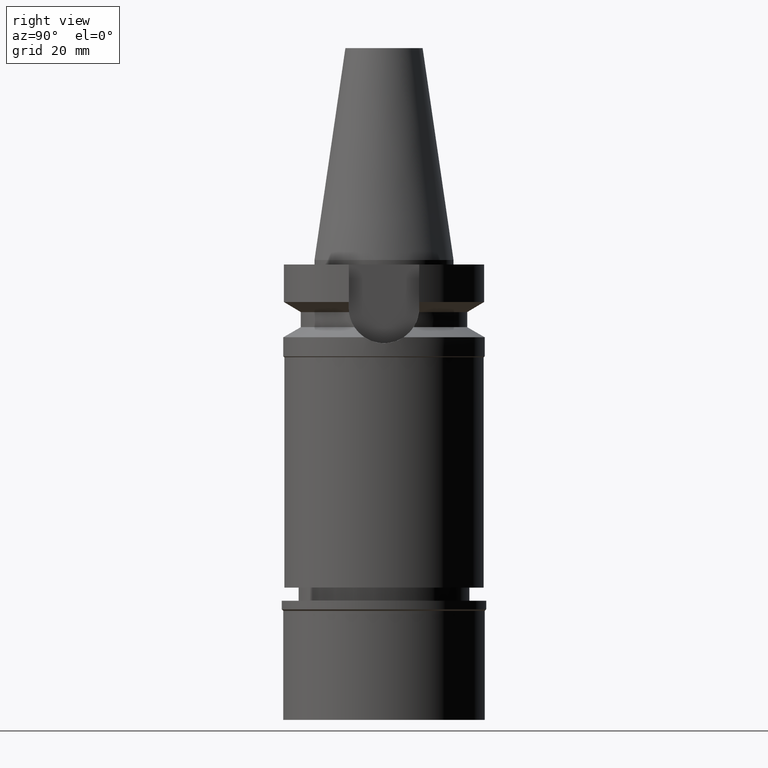
[diagram: clean part render]
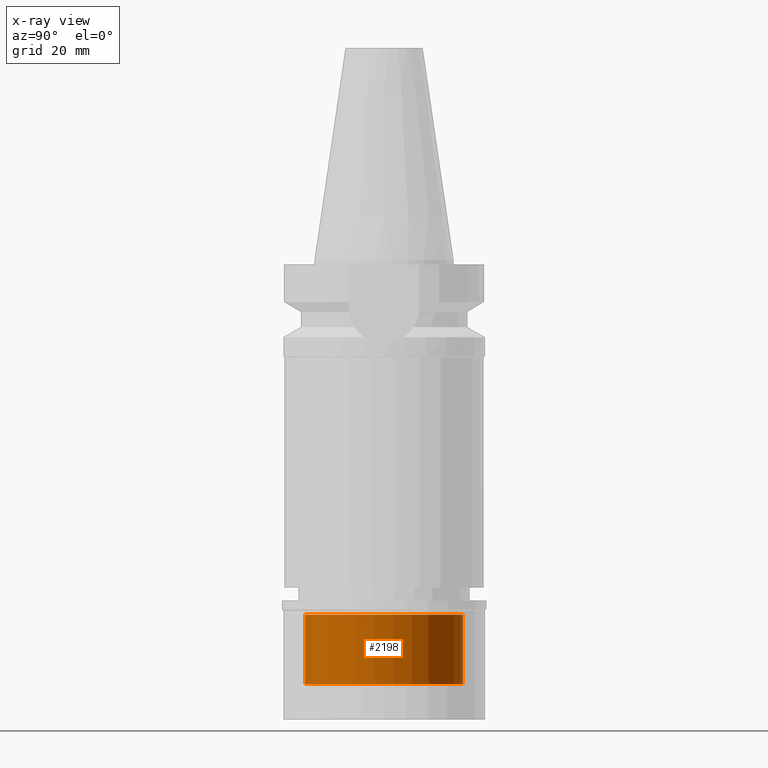
[diagram: x-ray — body ghosted, one internal face saturated and labeled with its STEP entity id]
A machine part, right view, then the same camera in x-ray: the body is ghosted and one INTERNAL B-rep face — a face not visible from any outside direction — is saturated and labeled: STEP entity #2198.
In plain terms, the highlighted cylindrical surface (partial cylindrical patch) has radius 18 mm, axis along (0, 0, -1).
Its self-contained STEP definition (entity closure, byte-faithful):
#32 = CARTESIAN_POINT ( 'NONE',  ( 0.0000000000000000000, -18.00000000000000000, -19.00000000000000000 ) ) ;
#158 = DIRECTION ( 'NONE',  ( 0.0000000000000000000, 0.0000000000000000000, 1.000000000000000000 ) ) ;
#170 = ORIENTED_EDGE ( 'NONE', *, *, #2841, .T. ) ;
#187 = ORIENTED_EDGE ( 'NONE', *, *, #1482, .T. ) ;
#195 = ORIENTED_EDGE ( 'NONE', *, *, #1257, .F. ) ;
#241 = DIRECTION ( 'NONE',  ( 0.0000000000000000000, 0.0000000000000000000, 1.000000000000000000 ) ) ;
#404 = CARTESIAN_POINT ( 'NONE',  ( 0.0000000000000000000, 18.00000000000000000, -19.00000000000000000 ) ) ;
#493 = CARTESIAN_POINT ( 'NONE',  ( 0.0000000000000000000, 0.0000000000000000000, 0.0000000000000000000 ) ) ;
#499 = CARTESIAN_POINT ( 'NONE',  ( 0.0000000000000000000, 0.0000000000000000000, -19.00000000000000000 ) ) ;
#500 = EDGE_CURVE ( 'NONE', #1599, #1849, #2613, .T. ) ;
#506 = VERTEX_POINT ( 'NONE', #404 ) ;
#532 = ORIENTED_EDGE ( 'NONE', *, *, #500, .T. ) ;
#653 = CARTESIAN_POINT ( 'NONE',  ( 0.0000000000000000000, 18.00000000000000000, -19.00000000000000000 ) ) ;
#870 = CARTESIAN_POINT ( 'NONE',  ( 0.0000000000000000000, 0.0000000000000000000, -3.200000000000000178 ) ) ;
#917 = DIRECTION ( 'NONE',  ( 0.0000000000000000000, -1.000000000000000000, 0.0000000000000000000 ) ) ;
#1123 = DIRECTION ( 'NONE',  ( 0.0000000000000000000, 0.0000000000000000000, 1.000000000000000000 ) ) ;
#1172 = CYLINDRICAL_SURFACE ( 'NONE', #2403, 18.00000000000000000 ) ;
#1219 = VECTOR ( 'NONE', #241, 1000.000000000000000 ) ;
#1257 = EDGE_CURVE ( 'NONE', #506, #1849, #2085, .T. ) ;
#1373 = AXIS2_PLACEMENT_3D ( 'NONE', #499, #1667, #1626 ) ;
#1482 = EDGE_CURVE ( 'NONE', #506, #2166, #1604, .T. ) ;
#1599 = VERTEX_POINT ( 'NONE', #1871 ) ;
#1604 = CIRCLE ( 'NONE', #1373, 18.00000000000000000 ) ;
#1626 = DIRECTION ( 'NONE',  ( 0.0000000000000000000, 1.000000000000000000, 0.0000000000000000000 ) ) ;
#1628 = DIRECTION ( 'NONE',  ( 0.0000000000000000000, 0.0000000000000000000, -1.000000000000000000 ) ) ;
#1667 = DIRECTION ( 'NONE',  ( 0.0000000000000000000, 0.0000000000000000000, -1.000000000000000000 ) ) ;
#1849 = VERTEX_POINT ( 'NONE', #2393 ) ;
#1871 = CARTESIAN_POINT ( 'NONE',  ( 0.0000000000000000000, -18.00000000000000000, -3.200000000000000178 ) ) ;
#1981 = CARTESIAN_POINT ( 'NONE',  ( 0.0000000000000000000, -18.00000000000000000, -19.00000000000000000 ) ) ;
#2060 = LINE ( 'NONE', #32, #2158 ) ;
#2085 = LINE ( 'NONE', #653, #1219 ) ;
#2158 = VECTOR ( 'NONE', #1123, 1000.000000000000000 ) ;
#2166 = VERTEX_POINT ( 'NONE', #1981 ) ;
#2198 = ADVANCED_FACE ( 'NONE', ( #2548 ), #1172, .F. ) ;
#2269 = AXIS2_PLACEMENT_3D ( 'NONE', #870, #158, #2927 ) ;
#2393 = CARTESIAN_POINT ( 'NONE',  ( 0.0000000000000000000, 18.00000000000000000, -3.200000000000000178 ) ) ;
#2403 = AXIS2_PLACEMENT_3D ( 'NONE', #493, #1628, #917 ) ;
#2548 = FACE_OUTER_BOUND ( 'NONE', #2865, .T. ) ;
#2613 = CIRCLE ( 'NONE', #2269, 18.00000000000000000 ) ;
#2841 = EDGE_CURVE ( 'NONE', #2166, #1599, #2060, .T. ) ;
#2865 = EDGE_LOOP ( 'NONE', ( #187, #170, #532, #195 ) ) ;
#2927 = DIRECTION ( 'NONE',  ( 0.0000000000000000000, -1.000000000000000000, 0.0000000000000000000 ) ) ;